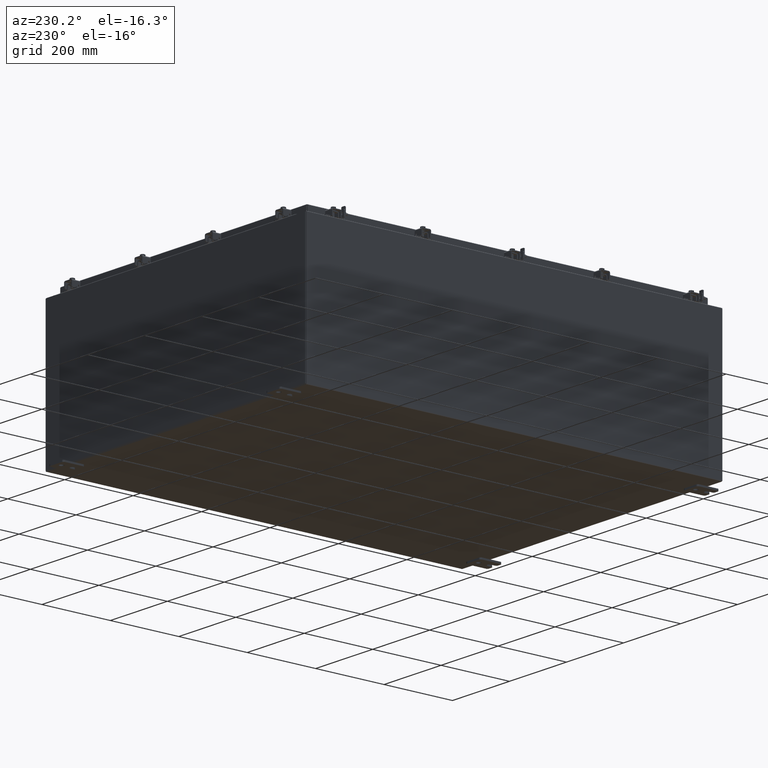
[diagram: clean part render]
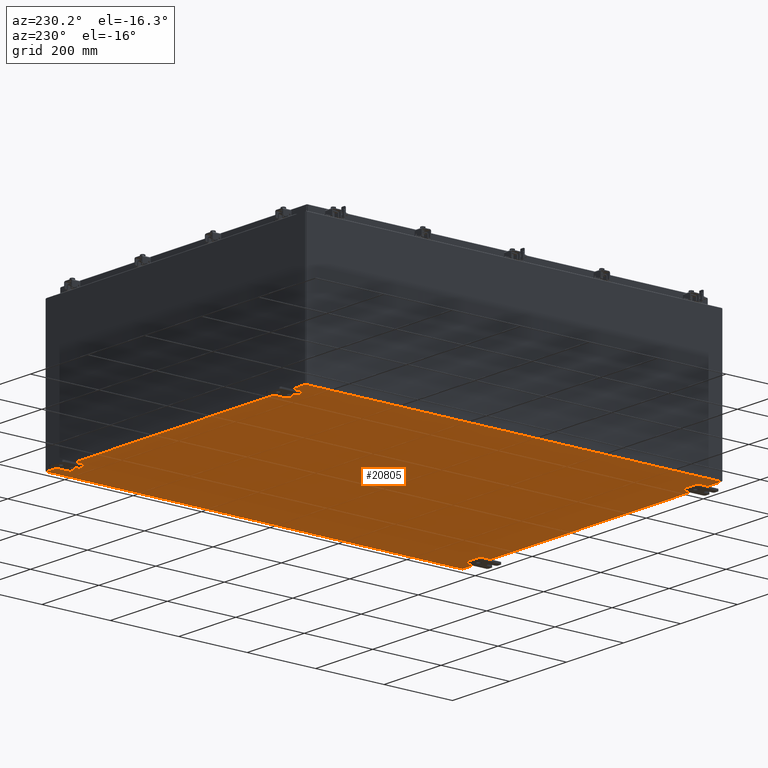
[diagram: same view with one face highlighted and labeled with its STEP entity id]
A machine part, auxiliary view. The second image highlights one B-rep face of the part: STEP entity #20805.
In plain terms, the highlighted planar face has unit normal (0, 0, -1).
Its self-contained STEP definition (entity closure, byte-faithful):
#206 = CARTESIAN_POINT ( 'NONE',  ( -18.00000000000000400, -23.92530000000000400, -0.07470000000000015500 ) ) ;
#1013 = EDGE_LOOP ( 'NONE', ( #15120, #20224, #10202, #23499 ) ) ;
#1236 = CARTESIAN_POINT ( 'NONE',  ( -18.00000000000000400, 23.92530000000000000, -0.07470000000000015500 ) ) ;
#1839 = VECTOR ( 'NONE', #26684, 39.37007874015748100 ) ;
#2316 = DIRECTION ( 'NONE',  ( 1.000000000000000000, 1.214154663850783700E-016, 0.0000000000000000000 ) ) ;
#3589 = LINE ( 'NONE', #20955, #14123 ) ;
#4828 = CARTESIAN_POINT ( 'NONE',  ( 17.91229999999999500, 23.92529999999998600, -0.07469999999999688000 ) ) ;
#7095 = VECTOR ( 'NONE', #2316, 39.37007874015748100 ) ;
#7407 = LINE ( 'NONE', #11951, #1839 ) ;
#7412 = CARTESIAN_POINT ( 'NONE',  ( -17.91230000000000500, 23.92529999999998900, -0.07470000000000015500 ) ) ;
#9069 = DIRECTION ( 'NONE',  ( -1.000000000000000000, 0.0000000000000000000, -0.0000000000000000000 ) ) ;
#10202 = ORIENTED_EDGE ( 'NONE', *, *, #18871, .F. ) ;
#11951 = CARTESIAN_POINT ( 'NONE',  ( 17.91229999999999500, 23.92529999999998900, -0.07469999999999688000 ) ) ;
#14123 = VECTOR ( 'NONE', #14575, 39.37007874015748100 ) ;
#14575 = DIRECTION ( 'NONE',  ( -0.0000000000000000000, 1.000000000000000000, -0.0000000000000000000 ) ) ;
#14629 = EDGE_CURVE ( 'NONE', #26087, #21522, #3589, .T. ) ;
#15120 = ORIENTED_EDGE ( 'NONE', *, *, #22569, .F. ) ;
#16101 = FACE_OUTER_BOUND ( 'NONE', #1013, .T. ) ;
#17061 = EDGE_CURVE ( 'NONE', #23915, #22129, #7407, .T. ) ;
#18871 = EDGE_CURVE ( 'NONE', #23915, #21522, #23811, .T. ) ;
#18885 = VECTOR ( 'NONE', #26448, 39.37007874015748100 ) ;
#19490 = CARTESIAN_POINT ( 'NONE',  ( 0.0000000000000000000, 0.0000000000000000000, -0.07470000000000015500 ) ) ;
#19585 = PLANE ( 'NONE',  #24294 ) ;
#20224 = ORIENTED_EDGE ( 'NONE', *, *, #14629, .T. ) ;
#20805 = ADVANCED_FACE ( 'NONE', ( #16101 ), #19585, .T. ) ;
#20955 = CARTESIAN_POINT ( 'NONE',  ( -17.91230000000000500, -23.92529999999998900, -0.07470000000000015500 ) ) ;
#21522 = VERTEX_POINT ( 'NONE', #7412 ) ;
#21708 = DIRECTION ( 'NONE',  ( 0.0000000000000000000, 0.0000000000000000000, -1.000000000000000000 ) ) ;
#22129 = VERTEX_POINT ( 'NONE', #22149 ) ;
#22149 = CARTESIAN_POINT ( 'NONE',  ( 17.91229999999999500, -23.92530000000000000, -0.07470000000000015500 ) ) ;
#22569 = EDGE_CURVE ( 'NONE', #26087, #22129, #23924, .T. ) ;
#23499 = ORIENTED_EDGE ( 'NONE', *, *, #17061, .T. ) ;
#23811 = LINE ( 'NONE', #1236, #18885 ) ;
#23915 = VERTEX_POINT ( 'NONE', #4828 ) ;
#23924 = LINE ( 'NONE', #206, #7095 ) ;
#24294 = AXIS2_PLACEMENT_3D ( 'NONE', #19490, #21708, #9069 ) ;
#25030 = CARTESIAN_POINT ( 'NONE',  ( -17.91230000000000500, -23.92529999999998600, -0.07470000000000015500 ) ) ;
#26087 = VERTEX_POINT ( 'NONE', #25030 ) ;
#26448 = DIRECTION ( 'NONE',  ( -1.000000000000000000, -0.0000000000000000000, -0.0000000000000000000 ) ) ;
#26684 = DIRECTION ( 'NONE',  ( -0.0000000000000000000, -1.000000000000000000, -8.208677865577646300E-017 ) ) ;